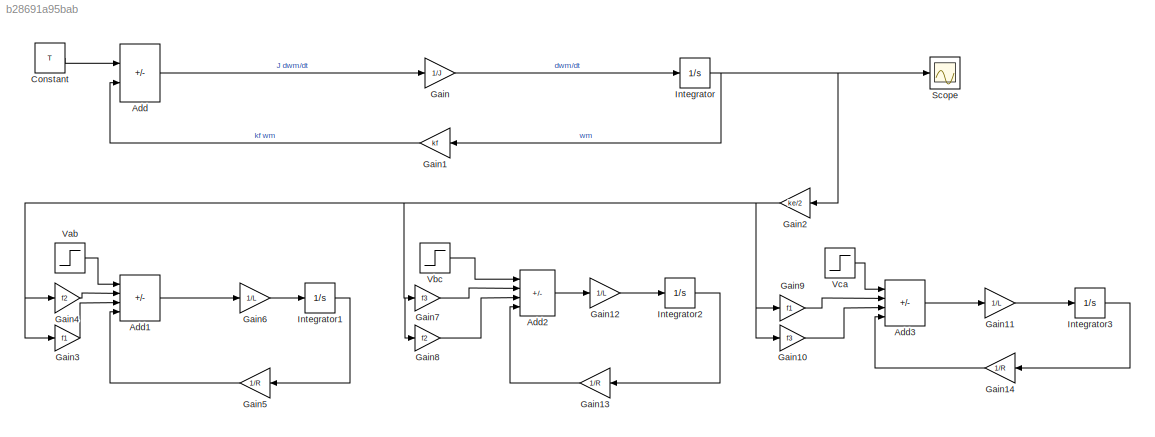
MODEL slx_b28691a95bab
KIND model
CONFIG AbsTol = auto
CONFIG EnableMultiTasking = off
CONFIG FixedStep = auto
CONFIG MaxStep = auto
CONFIG MinStep = auto
CONFIG RelTol = 1e-3
CONFIG SampleTimeConstraint = Unconstrained
CONFIG SolverName = VariableStepAuto
CONFIG StartTime = 0.0
CONFIG StopTime = 10.0
BLOCK [Sum] Add
  IconShape = rectangular
  Inputs = +-
  Ports = [2, 1]
BLOCK [Sum] Add1
  IconShape = rectangular
  Inputs = ++--
  Ports = [4, 1]
BLOCK [Sum] Add2
  IconShape = rectangular
  Inputs = ++--
  Ports = [4, 1]
BLOCK [Sum] Add3
  IconShape = rectangular
  Inputs = ++--
  Ports = [4, 1]
BLOCK [Constant] Constant
  Value = T
BLOCK [Gain] Gain
  Gain = 1/J
BLOCK [Gain] Gain1
  Gain = kf
  NameLocation = top
BLOCK [Gain] Gain10
  Gain = f3
BLOCK [Gain] Gain11
  Gain = 1/L
BLOCK [Gain] Gain12
  Gain = 1/L
BLOCK [Gain] Gain13
  Gain = 1/R
  NameLocation = top
BLOCK [Gain] Gain14
  Gain = 1/R
  NameLocation = top
BLOCK [Gain] Gain2
  Gain = ke/2
  NameLocation = top
BLOCK [Gain] Gain3
  Gain = f1
BLOCK [Gain] Gain4
  Gain = f2
BLOCK [Gain] Gain5
  Gain = 1/R
  NameLocation = top
BLOCK [Gain] Gain6
  Gain = 1/L
BLOCK [Gain] Gain7
  Gain = f3
BLOCK [Gain] Gain8
  Gain = f2
BLOCK [Gain] Gain9
  Gain = f1
BLOCK [Integrator] Integrator
  Ports = [1, 1]
BLOCK [Integrator] Integrator1
  Ports = [1, 1]
BLOCK [Integrator] Integrator2
  Ports = [1, 1]
BLOCK [Integrator] Integrator3
  Ports = [1, 1]
BLOCK [Scope] Scope
  Floating = off
  NumInputPorts = 1
  Ports = [1]
  ScopeSpecificationString = Simulink.scopes.TimeScopeBlockCfg('CurrentConfiguration', extmgr.ConfigurationSet(extmgr.Configuration('Core','General UI',true),extmgr.Configuration('Core','Source UI',true),extmgr.Configuration('Sources','WiredSimulink',true),extmgr.Configuration('Visuals','Time Domain',true),extmgr.Configuration('Tools','Plot Navigation',true),extmgr.Configuration('Tools','Measurements',true)),'Version','2020b'...<+1ch>
BLOCK [Step] Vab
  SampleTime = 0
BLOCK [Step] Vbc
  SampleTime = 0
BLOCK [Step] Vca
  SampleTime = 0
LINE Add1:1 -> Gain6:1
LINE Add2:1 -> Gain12:1
LINE Add3:1 -> Gain11:1
LINE Add:1 -> Gain:1
LINE Constant:1 -> Add:1
LINE Gain10:1 -> Add3:3
LINE Gain11:1 -> Integrator3:1
LINE Gain12:1 -> Integrator2:1
LINE Gain13:1 -> Add2:4
LINE Gain14:1 -> Add3:4
LINE Gain1:1 -> Add:2
NET Gain2:1 -> Gain10:1, Gain3:1, Gain4:1, Gain7:1, Gain8:1, Gain9:1
LINE Gain3:1 -> Add1:3
LINE Gain4:1 -> Add1:2
LINE Gain5:1 -> Add1:4
LINE Gain6:1 -> Integrator1:1
LINE Gain7:1 -> Add2:2
LINE Gain8:1 -> Add2:3
LINE Gain9:1 -> Add3:2
LINE Gain:1 -> Integrator:1
LINE Integrator1:1 -> Gain5:1
LINE Integrator2:1 -> Gain13:1
LINE Integrator3:1 -> Gain14:1
NET Integrator:1 -> Gain1:1, Gain2:1, Scope:1
LINE Vab:1 -> Add1:1
LINE Vbc:1 -> Add2:1
LINE Vca:1 -> Add3:1
note: NET lines group one-source signal fan-out (src -> all destinations, sorted); 1:1 wires keep LINE
